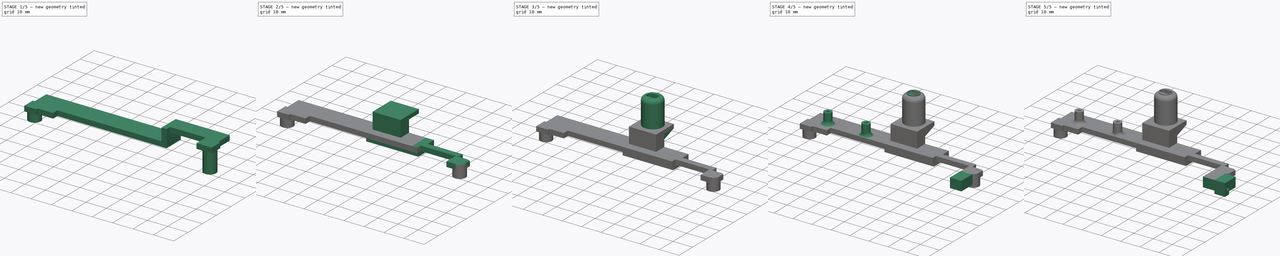
[diagram: build sequence overview — one tinted view per stage of 5, left to right]
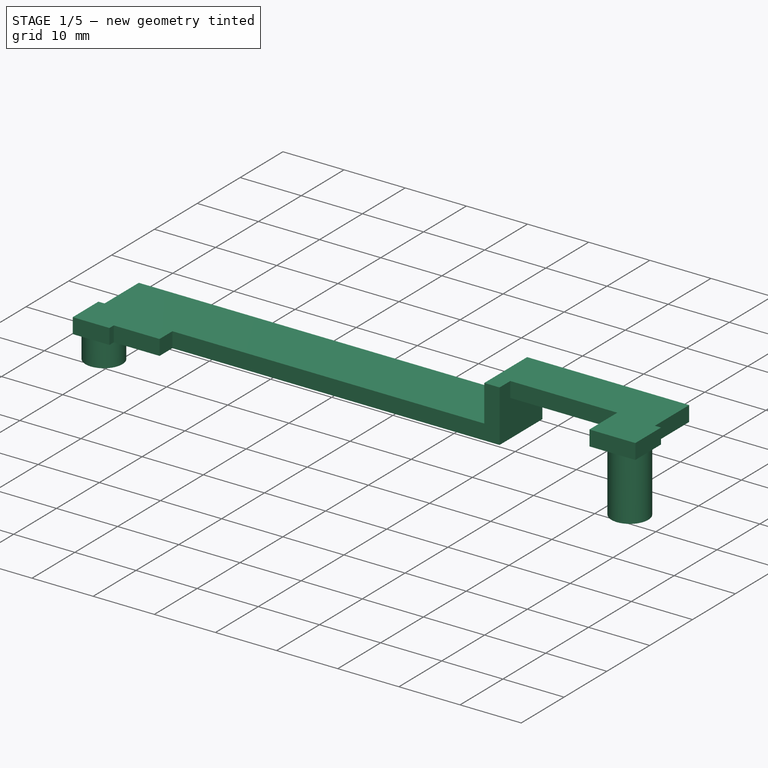
[diagram: stage 1 of 5 — iso view after this stage's code; geometry added in this stage tinted green]
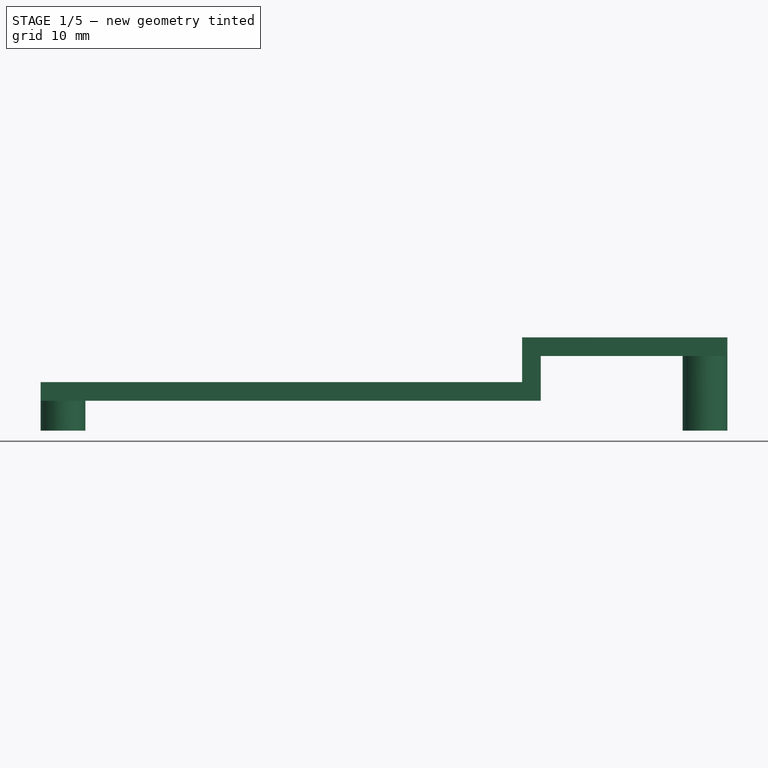
[diagram: stage 1 of 5 — front view after this stage's code; geometry added in this stage tinted green]
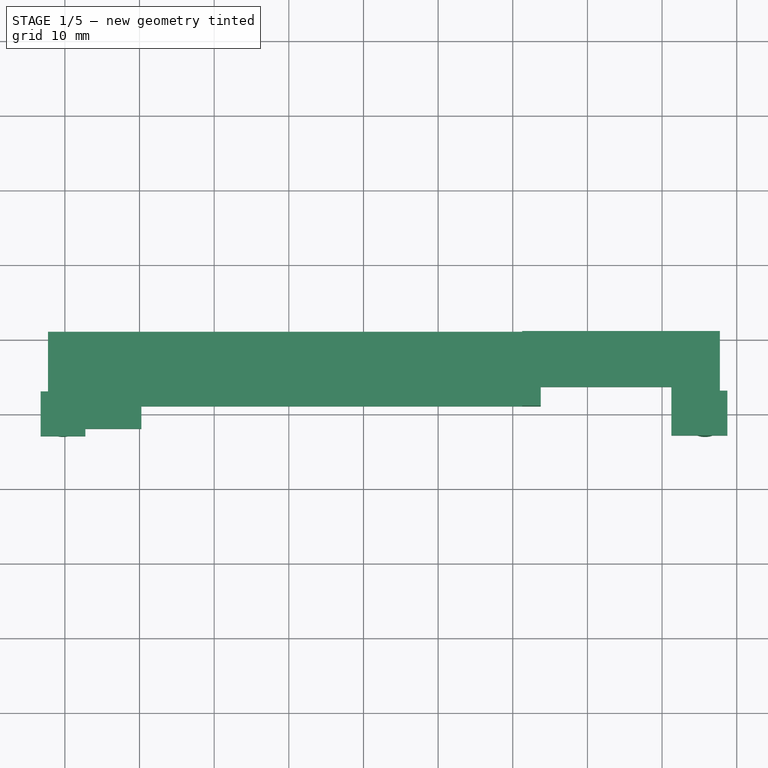
[diagram: stage 1 of 5 — top view after this stage's code; geometry added in this stage tinted green]
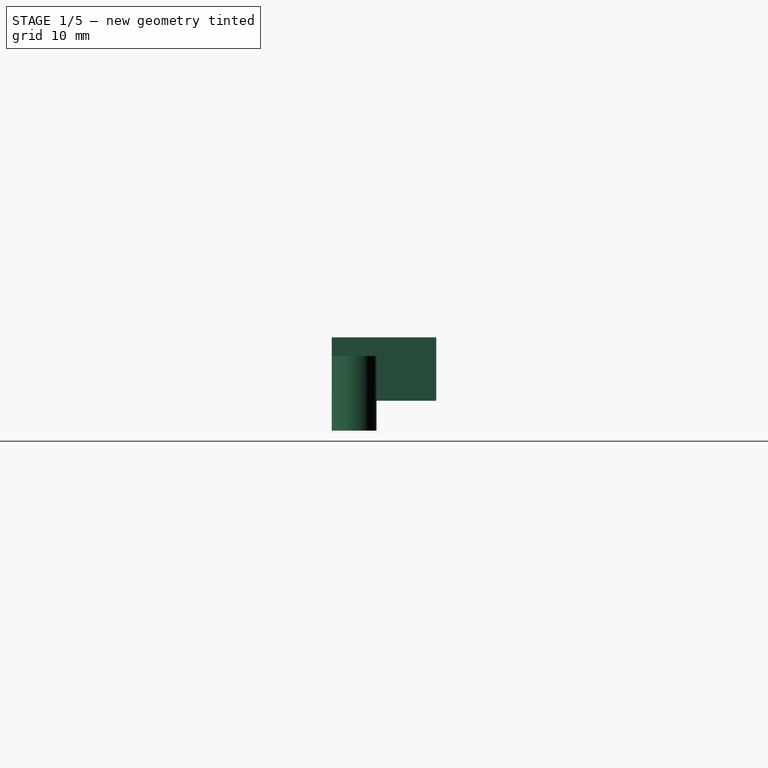
[diagram: stage 1 of 5 — right view after this stage's code; geometry added in this stage tinted green]
FCSTD DOCUMENT  (FreeCAD 0.18.4R)
Label: stand
License: All rights reserved
LicenseURL: http://en.wikipedia.org/wiki/All_rights_reserved
objects: Sketcher::SketchObject×19, PartDesign::Pad×16, PartDesign::Pocket×11, PartDesign::Fillet×2, PartDesign::Body×1
note: 76 computed .brp shape members not serialized (recipe doc carries the construction recipe); baked Part::Feature solids carry a one-line shape summary decoded from their .brp

FEATURE [Sketcher::SketchObject] Sketch
  MapMode = 5
  Support = -> [XY_Plane]
  sketch-geometry (2):
    g0: Circle CenterX=-40.25 CenterY=0 CenterZ=0 NormalX=0 NormalY=0 NormalZ=1 AngleXU=0 Radius=3
    g1: Circle CenterX=45.75 CenterY=0 CenterZ=0 NormalX=0 NormalY=0 NormalZ=1 AngleXU=0 Radius=3
  constraints (6):
    c: PointOnObject(g1,g-1)
    c: Diameter(g0) = 6
    c: Diameter(g1) = 6
    c: DistanceX(g0,g1) = 86
    c: DistanceX(g0,g-1) = 40.25
    c: Horizontal(g0,g-1)
FEATURE [Sketcher::SketchObject] Sketch001
  MapMode = 5
  Support = -> [XY_Plane]
  sketch-geometry (4):
    g0: LineSegment StartX=-50 StartY=20 StartZ=0 EndX=50 EndY=20 EndZ=0
    g1: LineSegment StartX=50 StartY=20 StartZ=0 EndX=50 EndY=-11 EndZ=0
    g2: LineSegment StartX=50 StartY=-11 StartZ=0 EndX=-50 EndY=-11 EndZ=0
    g3: LineSegment StartX=-50 StartY=-11 StartZ=0 EndX=-50 EndY=20 EndZ=0
  constraints (12):
    c: Coincident(g0,g1)
    c: Coincident(g1,g2)
    c: Coincident(g2,g3)
    c: Coincident(g3,g0)
    c: Horizontal(g0)
    c: Horizontal(g2)
    c: Vertical(g1)
    c: Vertical(g3)
    c: DistanceX(g0,g0) = 100
    c: DistanceY(g3,g3) = 31
    c: DistanceY(g-1,g0) = 20
    c: DistanceX(g-1,g1) = 50
FEATURE [PartDesign::Pad] Pad
  Length = 1
  Length2 = 100
  Profile = -> Sketch001
  Reversed = true
  Type = 0
FEATURE [PartDesign::Pad] Pad001
  BaseFeature = -> Pad
  Length = 10
  Length2 = 100
  Profile = -> Sketch
  Type = 0
FEATURE [Sketcher::SketchObject] Sketch002
  ExternalGeometry = -> [Pad001]
  MapMode = 5
  Placement = pos=(0,0,10) rot=(0,0,1;0rad)
  Support = -> [Pad001]
  sketch-geometry (16):
    g0: LineSegment StartX=-42.25 StartY=11 StartZ=0 EndX=47.75 EndY=11 EndZ=0
    g1: LineSegment StartX=47.75 StartY=11 StartZ=0 EndX=47.75 EndY=3 EndZ=0
    g2: LineSegment StartX=-42.25 StartY=3 StartZ=0 EndX=-42.25 EndY=11 EndZ=0
    g3: LineSegment StartX=-29.75 StartY=1 StartZ=0 EndX=23.75 EndY=1 EndZ=0
    g4: LineSegment StartX=-29.75 StartY=-2 StartZ=0 EndX=-29.75 EndY=1 EndZ=0
    g5: LineSegment StartX=-29.75 StartY=-2 StartZ=0 EndX=-37.25 EndY=-2 EndZ=0
    g6: LineSegment StartX=-43.25 StartY=3 StartZ=0 EndX=-42.25 EndY=3 EndZ=0
    g7: LineSegment StartX=-37.25 StartY=-2 StartZ=0 EndX=-37.25 EndY=-3 EndZ=0
    g8: LineSegment StartX=-37.25 StartY=-3 StartZ=0 EndX=-43.25 EndY=-3 EndZ=0
    g9: LineSegment StartX=-43.25 StartY=-3 StartZ=0 EndX=-43.25 EndY=3 EndZ=0
    g10: LineSegment StartX=47.75 StartY=3 StartZ=0 EndX=48.75 EndY=3 EndZ=0
    g11: LineSegment StartX=48.75 StartY=3 StartZ=0 EndX=48.75 EndY=-3 EndZ=0
    g12: LineSegment StartX=48.75 StartY=-3 StartZ=0 EndX=41.25 EndY=-3 EndZ=0
    g13: LineSegment StartX=23.75 StartY=1 StartZ=0 EndX=23.75 EndY=3.5 EndZ=0
    g14: LineSegment StartX=23.75 StartY=3.5 StartZ=0 EndX=41.25 EndY=3.5 EndZ=0
    g15: LineSegment StartX=41.25 StartY=3.5 StartZ=0 EndX=41.25 EndY=-3 EndZ=0
  constraints (48):
    c: Coincident(g0,g1)
    c: Coincident(g2,g0)
    c: Horizontal(g0)
    c: Vertical(g1)
    c: Vertical(g2)
    c: Coincident(g4,g3)
    c: Horizontal(g3)
    c: Vertical(g4)
    c: DistanceX(g0,g3) = 12.5
    c: Coincident(g4,g5)
    c: Coincident(g7,g8)
    c: Coincident(g8,g9)
    c: Coincident(g9,g6)
    c: Horizontal(g6)
    c: Horizontal(g8)
    c: Vertical(g7)
    c: Vertical(g9)
    c: DistanceX(g8,g-4) = 3
    c: DistanceY(g8,g-4) = 3
    c: Coincident(g6,g2)
    c: Coincident(g5,g7)
    c: DistanceY(g4,g0) = 13
    c: DistanceX(g0,g0) = 90
    c: Distance(g8) = 6
    c: Distance(g9) = 6
    c: Coincident(g10,g11)
    c: Coincident(g11,g12)
    c: Horizontal(g10)
    c: Horizontal(g12)
    c: Vertical(g11)
    c: DistanceY(g11,g-3) = 3
    c: DistanceX(g-3,g11) = 3
    c: Distance(g11) = 6
    c: Distance(g12) = 7.5
    c: Coincident(g10,g1)
    c: DistanceY(g4,g4) = 3
    c: DistanceX(g6,g6) = 1
    c: DistanceY(g7,g7) = 1
    c: Distance(g3) = 53.5
    c: Coincident(g13,g3)
    c: Vertical(g13)
    c: Coincident(g14,g13)
    c: Horizontal(g14)
    c: DistanceY(g13,g13) = 2.5
    c: DistanceX(g14,g14) = 17.5
    c: Coincident(g15,g14)
    c: Coincident(g15,g12)
    c: DistanceY(g5,g5) = 0
FEATURE [PartDesign::Pad] Pad002
  BaseFeature = -> Pad001
  Length = 2.5
  Length2 = 100
  Profile = -> Sketch002
  Type = 0
FEATURE [Sketcher::SketchObject] Sketch003
  ExternalGeometry = -> [Pad002]
  MapMode = 5
  Placement = pos=(0,0,-1) rot=(1,0,0;3.14159rad)
  Support = -> [Pad002]
  sketch-geometry (4):
    g0: LineSegment StartX=-50 StartY=11 StartZ=0 EndX=50 EndY=11 EndZ=0
    g1: LineSegment StartX=50 StartY=11 StartZ=0 EndX=50 EndY=-20 EndZ=0
    g2: LineSegment StartX=50 StartY=-20 StartZ=0 EndX=-50 EndY=-20 EndZ=0
    g3: LineSegment StartX=-50 StartY=-20 StartZ=0 EndX=-50 EndY=11 EndZ=0
  constraints (10):
    c: Coincident(g0,g1)
    c: Coincident(g1,g2)
    c: Coincident(g2,g3)
    c: Coincident(g3,g0)
    c: Horizontal(g0)
    c: Horizontal(g2)
    c: Vertical(g1)
    c: Vertical(g3)
    c: Coincident(g0,g-4)
    c: Coincident(g1,g-6)
FEATURE [PartDesign::Pocket] Pocket
  BaseFeature = -> Pad002
  Length = 1
  Length2 = 100
  Profile = -> Sketch003
  Type = 0
FEATURE [Sketcher::SketchObject] Sketch004
  ExternalGeometry = -> [Pocket]
  MapMode = 5
  Placement = pos=(0,0,10) rot=(1,0,0;3.14159rad)
  Support = -> [Pocket]
  sketch-geometry (10):
    g0: LineSegment StartX=23.75 StartY=-1 StartZ=0 EndX=-29.75 EndY=-1 EndZ=0
    g1: LineSegment StartX=23.75 StartY=-11 StartZ=0 EndX=23.75 EndY=-1 EndZ=0
    g2: LineSegment StartX=-29.75 StartY=-1 StartZ=0 EndX=-29.75 EndY=2 EndZ=0
    g3: LineSegment StartX=-37.25 StartY=2 StartZ=0 EndX=-37.25 EndY=3 EndZ=0
    g4: LineSegment StartX=-37.25 StartY=2 StartZ=0 EndX=-29.75 EndY=2 EndZ=0
    g5: LineSegment StartX=-37.25 StartY=3 StartZ=0 EndX=-43.25 EndY=3 EndZ=0
    g6: LineSegment StartX=-43.25 StartY=-3 StartZ=0 EndX=-42.25 EndY=-3 EndZ=0
    g7: LineSegment StartX=-43.25 StartY=3 StartZ=0 EndX=-43.25 EndY=-3 EndZ=0
    g8: LineSegment StartX=-42.25 StartY=-3 StartZ=0 EndX=-42.25 EndY=-11 EndZ=0
    g9: LineSegment StartX=-42.25 StartY=-11 StartZ=0 EndX=23.75 EndY=-11 EndZ=0
  constraints (23):
    c: Coincident(g1,g0)
    c: Horizontal(g0)
    c: Vertical(g1)
    c: Coincident(g0,g-4)
    c: DistanceX(g0,g-3) = 0
    c: Coincident(g2,g0)
    c: Coincident(g2,g-13)
    c: Coincident(g3,g-12)
    c: Coincident(g4,g3)
    c: Coincident(g4,g2)
    c: Horizontal(g4)
    c: Coincident(g5,g3)
    c: Coincident(g5,g-7)
    c: Coincident(g6,g-9)
    c: Coincident(g6,g-9)
    c: Coincident(g7,g5)
    c: Coincident(g7,g6)
    c: Coincident(g8,g6)
    c: Coincident(g8,g-5)
    c: DistanceX(g-12,g3) = 0
    c: Coincident(g9,g8)
    c: Coincident(g9,g1)
    c: Horizontal(g9)
FEATURE [PartDesign::Pad] Pad003
  BaseFeature = -> Pocket
  Length = 6
  Length2 = 100
  Profile = -> Sketch004
  Type = 0
FEATURE [Sketcher::SketchObject] Sketch005
  ExternalGeometry = -> [Pad003]
  MapMode = 5
  Placement = pos=(0,0,12.5) rot=(0,0,1;0rad)
  Support = -> [Pad003]
  sketch-geometry (10):
    g0: LineSegment StartX=-42.25 StartY=11 StartZ=0 EndX=-42.25 EndY=3 EndZ=0
    g1: LineSegment StartX=-43.25 StartY=3 StartZ=0 EndX=-42.25 EndY=3 EndZ=0
    g2: LineSegment StartX=-43.25 StartY=-3 StartZ=0 EndX=-43.25 EndY=3 EndZ=0
    g3: LineSegment StartX=-43.25 StartY=-3 StartZ=0 EndX=-37.25 EndY=-3 EndZ=0
    g4: LineSegment StartX=-37.25 StartY=-3 StartZ=0 EndX=-37.25 EndY=-2 EndZ=0
    g5: LineSegment StartX=-37.25 StartY=-2 StartZ=0 EndX=-29.75 EndY=-2 EndZ=0
    g6: LineSegment StartX=-29.75 StartY=-2 StartZ=0 EndX=-29.75 EndY=1 EndZ=0
    g7: LineSegment StartX=-29.75 StartY=1 StartZ=0 EndX=21.25 EndY=1 EndZ=0
    g8: LineSegment StartX=-42.25 StartY=11 StartZ=0 EndX=21.25 EndY=11 EndZ=0
    g9: LineSegment StartX=21.25 StartY=11 StartZ=0 EndX=21.25 EndY=1 EndZ=0
  constraints (22):
    c: Coincident(g0,g-7)
    c: Coincident(g1,g-4)
    c: Coincident(g1,g0)
    c: Coincident(g2,g-5)
    c: Coincident(g2,g1)
    c: Coincident(g3,g-6)
    c: Coincident(g4,g3)
    c: Coincident(g4,g-8)
    c: Coincident(g5,g4)
    c: Coincident(g6,g-10)
    c: Coincident(g7,g6)
    c: Coincident(g0,g-3)
    c: Horizontal(g8)
    c: Coincident(g0,g8)
    c: Coincident(g5,g6)
    c: Coincident(g5,g-9)
    c: Coincident(g2,g3)
    c: Coincident(g9,g7)
    c: Vertical(g9)
    c: Coincident(g8,g9)
    c: Horizontal(g7)
    c: DistanceX(g7,g-11) = 2.5
FEATURE [PartDesign::Pocket] Pocket001
  BaseFeature = -> Pad003
  Length = 6
  Length2 = 100
  Profile = -> Sketch005
  Type = 0
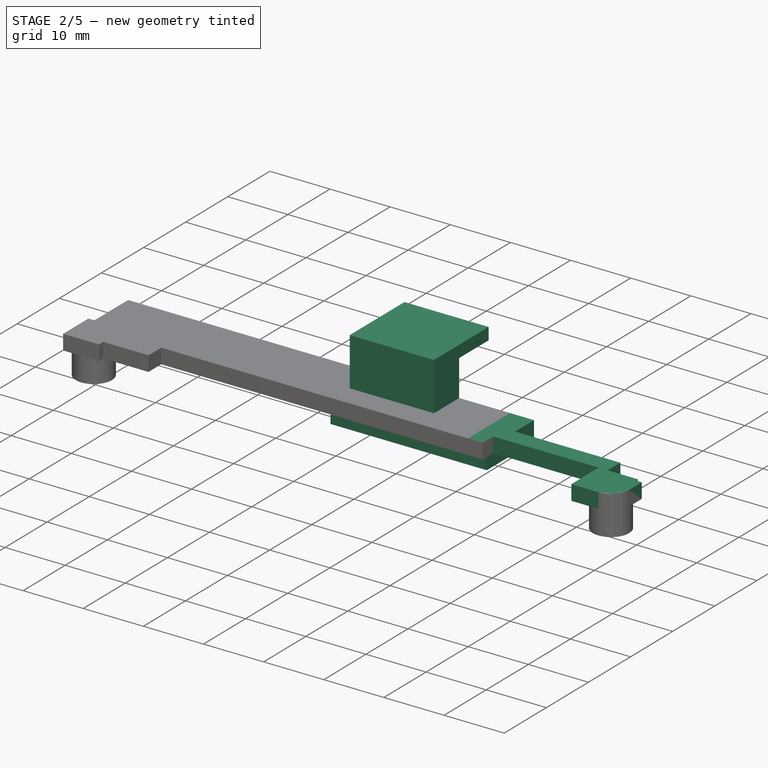
[diagram: stage 2 of 5 — iso view after this stage's code; geometry added in this stage tinted green]
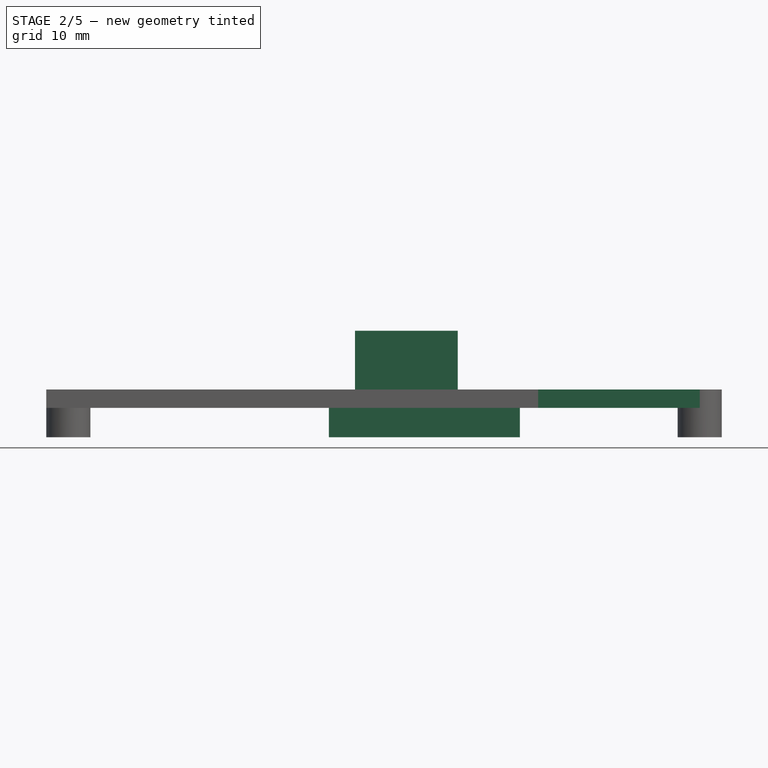
[diagram: stage 2 of 5 — front view after this stage's code; geometry added in this stage tinted green]
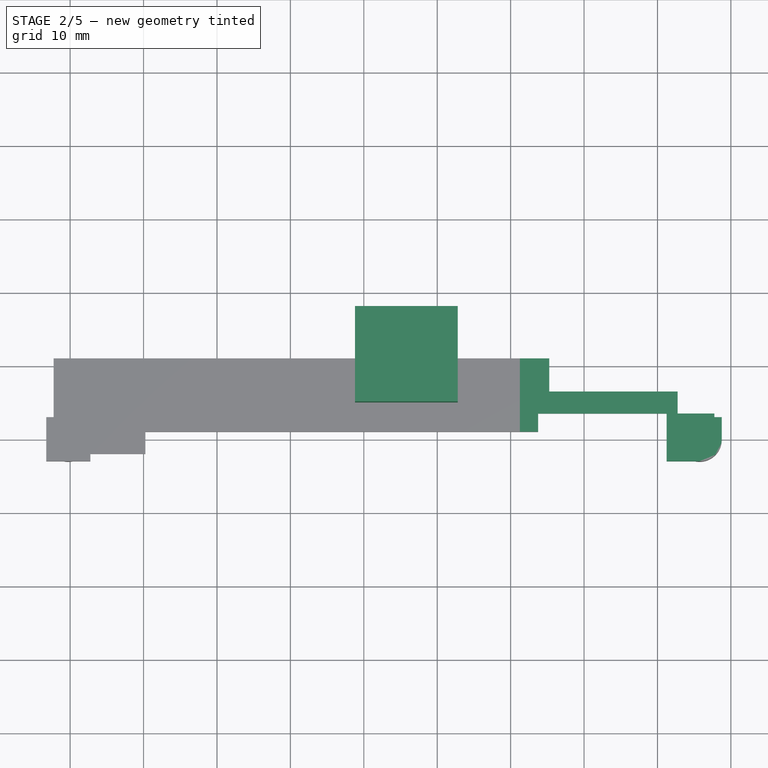
[diagram: stage 2 of 5 — top view after this stage's code; geometry added in this stage tinted green]
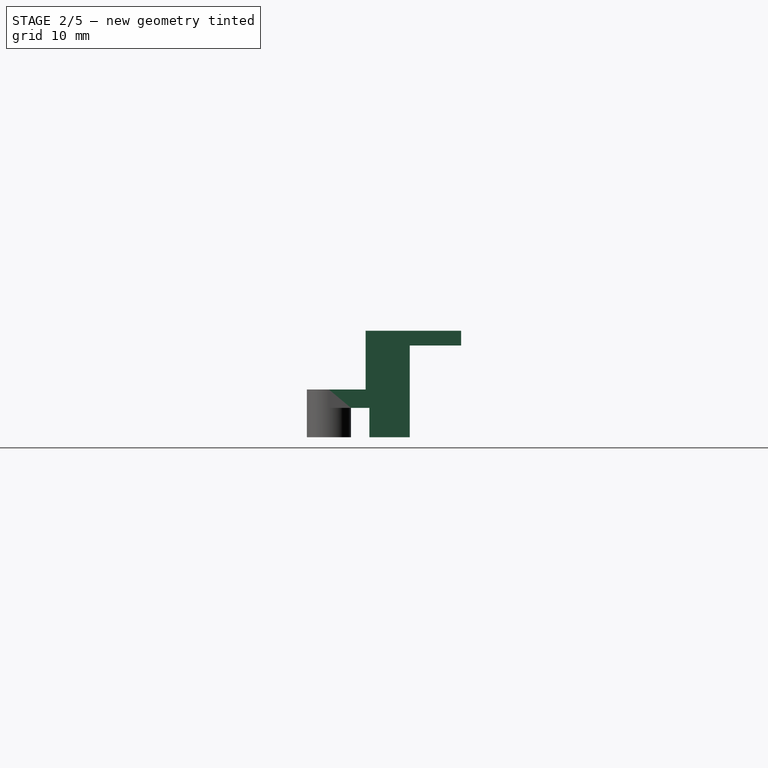
[diagram: stage 2 of 5 — right view after this stage's code; geometry added in this stage tinted green]
FEATURE [Sketcher::SketchObject] Sketch006
  ExternalGeometry = -> [Pocket001]
  MapMode = 5
  Placement = pos=(0,0,12.5) rot=(0,0,1;0rad)
  Support = -> [Pocket001]
  sketch-geometry (12):
    g0: LineSegment StartX=25.25 StartY=13.5 StartZ=0 EndX=40.25 EndY=13.5 EndZ=0
    g1: LineSegment StartX=42.75 StartY=6.5 StartZ=0 EndX=25.25 EndY=6.5 EndZ=0
    g2: LineSegment StartX=25.25 StartY=6.5 StartZ=0 EndX=25.25 EndY=13.5 EndZ=0
    g3: LineSegment StartX=42.75 StartY=6.5 StartZ=0 EndX=42.75 EndY=3.5 EndZ=0
    g4: LineSegment StartX=42.75 StartY=3.5 StartZ=0 EndX=50.75 EndY=3.5 EndZ=0
    g5: LineSegment StartX=40.25 StartY=15.5 StartZ=0 EndX=55.25 EndY=15.5 EndZ=0
    g6: LineSegment StartX=55.25 StartY=15.5 StartZ=0 EndX=55.25 EndY=8.5 EndZ=0
    g7: LineSegment StartX=55.25 StartY=8.5 StartZ=0 EndX=53.75 EndY=8.5 EndZ=0
    g8: LineSegment StartX=40.25 StartY=13.5 StartZ=0 EndX=40.25 EndY=15.5 EndZ=0
    g9: LineSegment StartX=53.75 StartY=8.5 StartZ=0 EndX=53.75 EndY=0 EndZ=0
    g10: LineSegment StartX=53.75 StartY=0 StartZ=0 EndX=50.75 EndY=0 EndZ=0
    g11: LineSegment StartX=50.75 StartY=3.5 StartZ=0 EndX=50.75 EndY=0 EndZ=0
  constraints (36):
    c: Coincident(g1,g2)
    c: Coincident(g2,g0)
    c: Horizontal(g0)
    c: Horizontal(g1)
    c: Vertical(g2)
    c: DistanceY(g-3,g1) = 3
    c: DistanceX(g-3,g1) = 1.5
    c: DistanceX(g-4,g1) = 1.5
    c: Vertical(g3)
    c: Horizontal(g4)
    c: Coincident(g3,g4)
    c: DistanceY(g3,g-4) = 0
    c: Coincident(g5,g6)
    c: Coincident(g6,g7)
    c: Coincident(g8,g5)
    c: Horizontal(g5)
    c: Horizontal(g7)
    c: Vertical(g6)
    c: Vertical(g8)
    c: Coincident(g9,g10)
    c: Horizontal(g10)
    c: Vertical(g9)
    c: PointOnObject(g9,g-1)
    c: Coincident(g0,g8)
    c: Coincident(g7,g9)
    c: Coincident(g11,g10)
    c: Coincident(g4,g11)
    c: Vertical(g11)
    c: DistanceX(g4,g4) = 8
    c: DistanceX(g10,g10) = 3
    c: DistanceX(g5,g5) = 15
    c: DistanceX(g0,g0) = 15
    c: Coincident(g1,g3)
    c: DistanceY(g2,g2) = 7
    c: DistanceY(g6,g6) = 7
    c: DistanceY(g8,g8) = 2
FEATURE [PartDesign::Pocket] Pocket002
  BaseFeature = -> Pocket001
  Length = 5
  Length2 = 100
  Profile = -> Sketch006
  Type = 0
FEATURE [PartDesign::Pad] Pad004
  BaseFeature = -> Pocket002
  Length = 6
  Length2 = 100
  Profile = -> Pocket002 [Face4]
  Type = 0
FEATURE [PartDesign::Pocket] Pocket003
  BaseFeature = -> Pad004
  Length = 6
  Length2 = 100
  Profile = -> Pad004 [Face20]
  Type = 0
FEATURE [Sketcher::SketchObject] Sketch008
  ExternalGeometry = -> [Pocket003]
  MapMode = 5
  Placement = pos=(0,0,4) rot=(1,0,0;3.14159rad)
  Support = -> [Pocket003]
  sketch-geometry (4):
    g0: LineSegment StartX=-4.75 StartY=-5.5 StartZ=0 EndX=21.25 EndY=-5.5 EndZ=0
    g1: LineSegment StartX=21.25 StartY=-5.5 StartZ=0 EndX=21.25 EndY=-11 EndZ=0
    g2: LineSegment StartX=21.25 StartY=-11 StartZ=0 EndX=-4.75 EndY=-11 EndZ=0
    g3: LineSegment StartX=-4.75 StartY=-11 StartZ=0 EndX=-4.75 EndY=-5.5 EndZ=0
  constraints (12):
    c: Coincident(g0,g1)
    c: Coincident(g1,g2)
    c: Coincident(g2,g3)
    c: Coincident(g3,g0)
    c: Horizontal(g0)
    c: Horizontal(g2)
    c: Vertical(g1)
    c: Vertical(g3)
    c: DistanceX(g0,g0) = 26
    c: DistanceY(g1,g1) = 5.5
    c: DistanceX(g1,g-3) = 0
    c: DistanceY(g-3,g1) = 0
FEATURE [PartDesign::Pad] Pad005
  BaseFeature = -> Pocket003
  Length = 4
  Length2 = 100
  Profile = -> Sketch008
  Type = 0
FEATURE [Sketcher::SketchObject] Sketch009
  ExternalGeometry = -> [Pad005]
  MapMode = 5
  Placement = pos=(0,0,6.5) rot=(0,0,1;0rad)
  Support = -> [Pad005]
  sketch-geometry (4):
    g0: LineSegment StartX=-1.2 StartY=11 StartZ=0 EndX=12.8 EndY=11 EndZ=0
    g1: LineSegment StartX=12.8 StartY=11 StartZ=0 EndX=12.8 EndY=5 EndZ=0
    g2: LineSegment StartX=12.8 StartY=5 StartZ=0 EndX=-1.2 EndY=5 EndZ=0
    g3: LineSegment StartX=-1.2 StartY=5 StartZ=0 EndX=-1.2 EndY=11 EndZ=0
  constraints (12):
    c: Coincident(g0,g1)
    c: Coincident(g1,g2)
    c: Coincident(g2,g3)
    c: Coincident(g3,g0)
    c: Horizontal(g0)
    c: Horizontal(g2)
    c: Vertical(g1)
    c: Vertical(g3)
    c: DistanceX(g0,g0) = 14
    c: DistanceX(g2,g-1) = 1.2
    c: Horizontal(g0,g-3)
    c: DistanceY(g1,g1) = 6
FEATURE [PartDesign::Pad] Pad006
  BaseFeature = -> Pad005
  Length = 6
  Length2 = 100
  Profile = -> Sketch009
  Type = 0
FEATURE [Sketcher::SketchObject] Sketch010
  ExternalGeometry = -> [Pad006]
  MapMode = 5
  Placement = pos=(0,0,12.5) rot=(0,0,1;0rad)
  Support = -> [Pad006]
  sketch-geometry (4):
    g0: LineSegment StartX=-1.2 StartY=5 StartZ=0 EndX=12.8 EndY=5 EndZ=0
    g1: LineSegment StartX=12.8 StartY=5 StartZ=0 EndX=12.8 EndY=18 EndZ=0
    g2: LineSegment StartX=12.8 StartY=18 StartZ=0 EndX=-1.2 EndY=18 EndZ=0
    g3: LineSegment StartX=-1.2 StartY=18 StartZ=0 EndX=-1.2 EndY=5 EndZ=0
  constraints (10):
    c: Coincident(g0,g1)
    c: Coincident(g1,g2)
    c: Coincident(g2,g3)
    c: Coincident(g3,g0)
    c: Horizontal(g2)
    c: Vertical(g1)
    c: Vertical(g3)
    c: Coincident(g0,g-4)
    c: Coincident(g-5,g0)
    c: DistanceY(g-5,g1) = 7
FEATURE [PartDesign::Pad] Pad007
  BaseFeature = -> Pad006
  Length = 2
  Length2 = 100
  Profile = -> Sketch010
  Type = 0
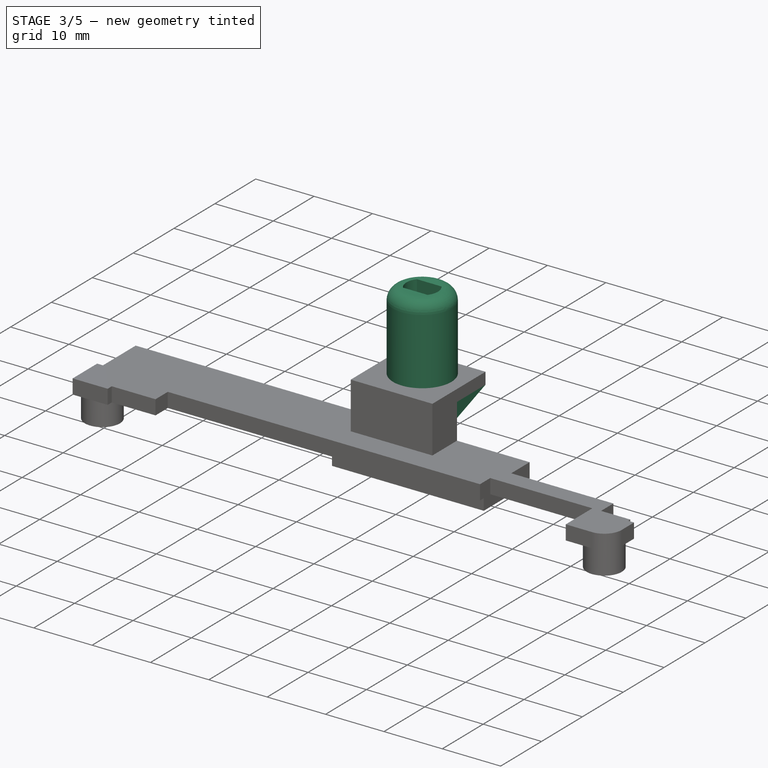
[diagram: stage 3 of 5 — iso view after this stage's code; geometry added in this stage tinted green]
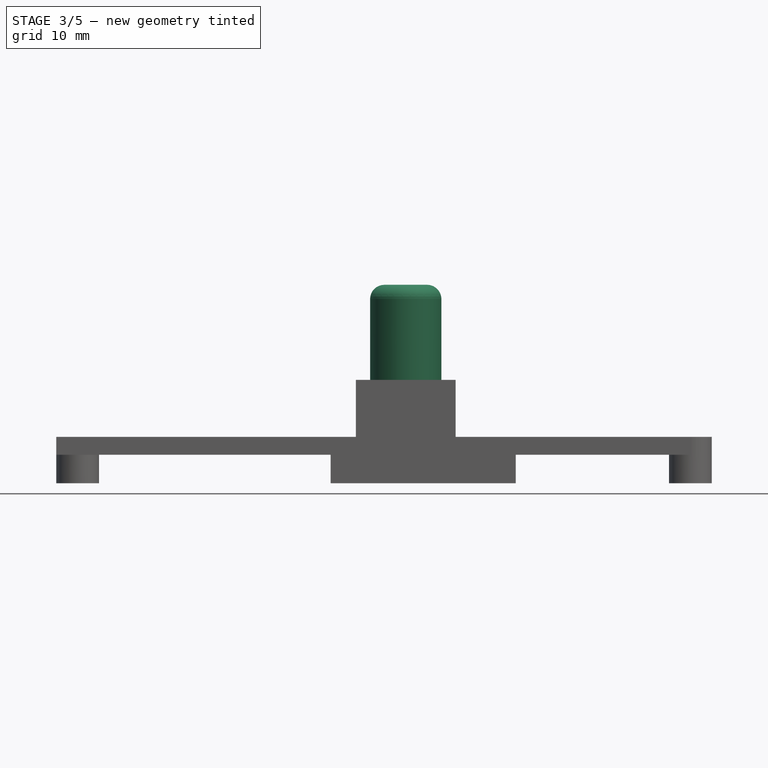
[diagram: stage 3 of 5 — front view after this stage's code; geometry added in this stage tinted green]
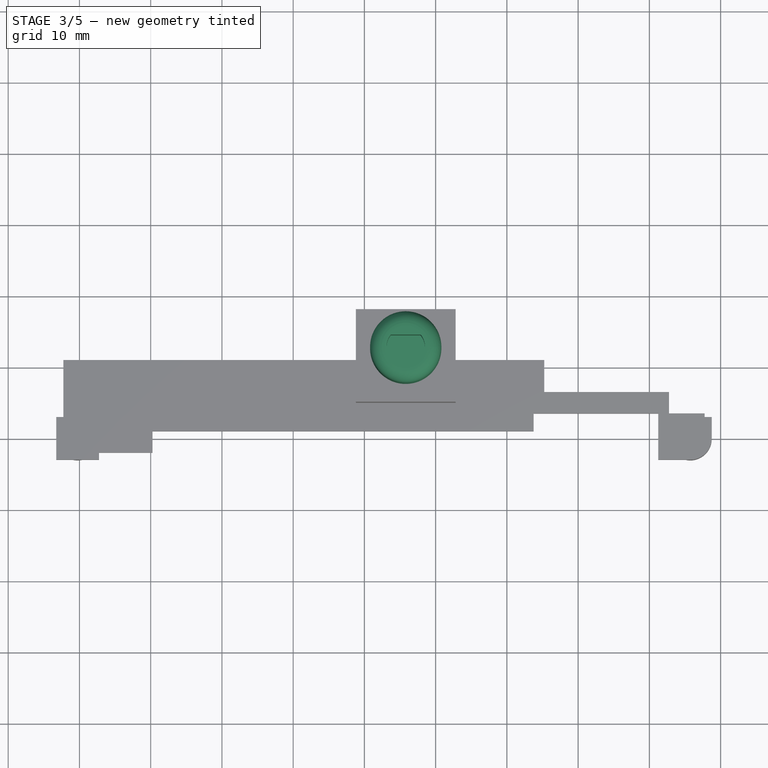
[diagram: stage 3 of 5 — top view after this stage's code; geometry added in this stage tinted green]
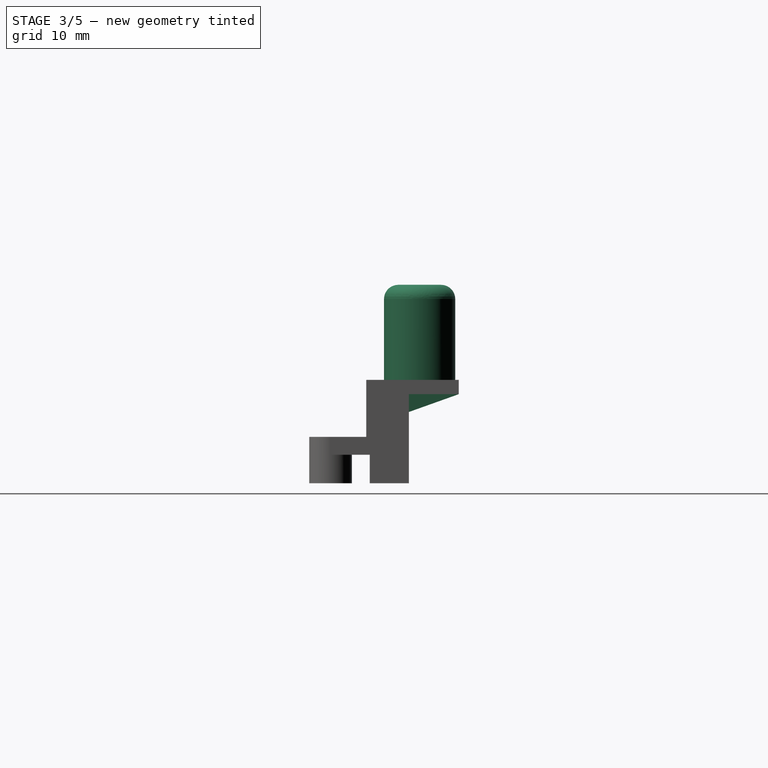
[diagram: stage 3 of 5 — right view after this stage's code; geometry added in this stage tinted green]
FEATURE [Sketcher::SketchObject] Sketch011
  ExternalGeometry = -> [Pad007]
  MapMode = 5
  Placement = pos=(-1.2,0,0) rot=(0.57735,-0.57735,-0.57735;2.0944rad)
  Support = -> [Pad007]
  sketch-geometry (5):
    g0: LineSegment StartX=-18 StartY=12.5 StartZ=0 EndX=-11 EndY=10 EndZ=0
    g1: LineSegment StartX=-18 StartY=13 StartZ=0 EndX=-10.5 EndY=13 EndZ=0
    g2: LineSegment StartX=-10.5 StartY=13 StartZ=0 EndX=-10.5 EndY=10 EndZ=0
    g3: LineSegment StartX=-11 StartY=10 StartZ=0 EndX=-10.5 EndY=10 EndZ=0
    g4: LineSegment StartX=-18 StartY=12.5 StartZ=0 EndX=-18 EndY=13 EndZ=0
  constraints (14):
    c: PointOnObject(g0,g-4)
    c: Coincident(g1,g2)
    c: Horizontal(g1)
    c: Vertical(g2)
    c: DistanceY(g-4,g1) = 0.5
    c: DistanceX(g-4,g1) = 0.5
    c: Coincident(g3,g0)
    c: Horizontal(g3)
    c: Vertical(g4)
    c: Coincident(g1,g4)
    c: Coincident(g2,g3)
    c: Coincident(g0,g4)
    c: Coincident(g0,g-3)
    c: DistanceY(g2,g2) = 3
FEATURE [PartDesign::Pad] Pad008
  BaseFeature = -> Pad007
  Length = 14
  Length2 = 100
  Profile = -> Sketch011
  Reversed = true
  Type = 0
FEATURE [Sketcher::SketchObject] Sketch012
  ExternalGeometry = -> [Pad008]
  MapMode = 5
  Placement = pos=(0,0,14.5) rot=(0,0,1;0rad)
  Support = -> [Pad008]
  sketch-geometry (1):
    g0: Circle CenterX=5.8 CenterY=12.5 CenterZ=0 NormalX=0 NormalY=0 NormalZ=1 AngleXU=0 Radius=5
  constraints (3):
    c: Diameter(g0) = 10
    c: DistanceY(g-3,g0) = 1.5
    c: DistanceX(g-1,g0) = 5.8
FEATURE [PartDesign::Pad] Pad009
  BaseFeature = -> Pad008
  Length = 12.2
  Length2 = 100
  Profile = -> Sketch012
  Type = 0
FEATURE [Sketcher::SketchObject] Sketch013
  ExternalGeometry = -> [Pad009]
  MapMode = 5
  Placement = pos=(0,0,26.7) rot=(0,0,1;0rad)
  Support = -> [Pad009]
  sketch-geometry (4):
    g0: ArcOfCircle CenterX=5.8 CenterY=12.5 CenterZ=0 NormalX=0 NormalY=0 NormalZ=1 AngleXU=0 Radius=2.7 StartAngle=2.46052 EndAngle=3.82267
    g1: LineSegment StartX=3.70238 StartY=14.2 StartZ=0 EndX=7.89762 EndY=14.2 EndZ=0
    g2: LineSegment StartX=7.89762 StartY=10.8 StartZ=0 EndX=3.70238 EndY=10.8 EndZ=0
    g3: ArcOfCircle CenterX=5.8 CenterY=12.5 CenterZ=0 NormalX=0 NormalY=0 NormalZ=1 AngleXU=0 Radius=2.7 StartAngle=5.60211 EndAngle=6.96426
  constraints (12):
    c: Coincident(g0,g-3)
    c: Diameter(g0) = 5.4
    c: Horizontal(g1)
    c: Horizontal(g2)
    c: Coincident(g0,g1)
    c: Coincident(g3,g1)
    c: Equal(g0,g3)
    c: Coincident(g0,g2)
    c: Coincident(g3,g2)
    c: Coincident(g0,g3)
    c: DistanceY(g0,g1) = 1.7
    c: DistanceY(g2,g0) = 1.7
FEATURE [PartDesign::Pocket] Pocket004
  BaseFeature = -> Pad009
  Length = 7
  Length2 = 100
  Profile = -> Sketch013
  Type = 0
FEATURE [PartDesign::Pad] Pad010
  BaseFeature = -> Pocket004
  Length = 1.15
  Length2 = 100
  Profile = -> Pocket004 [Face56]
  Type = 0
FEATURE [PartDesign::Fillet] Fillet
  Base = -> Pad010 [Edge142]
  BaseFeature = -> Pad010
  Radius = 2
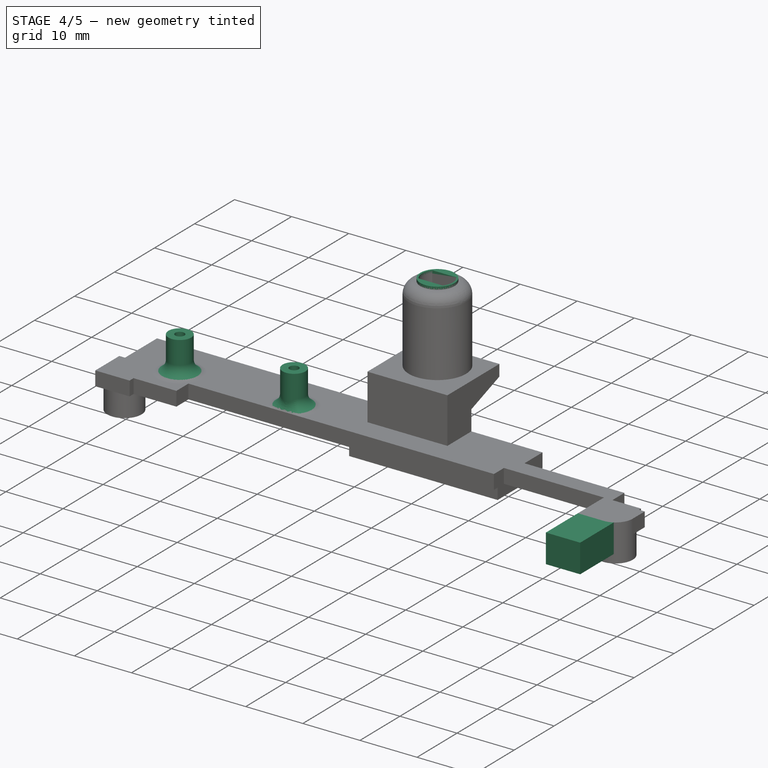
[diagram: stage 4 of 5 — iso view after this stage's code; geometry added in this stage tinted green]
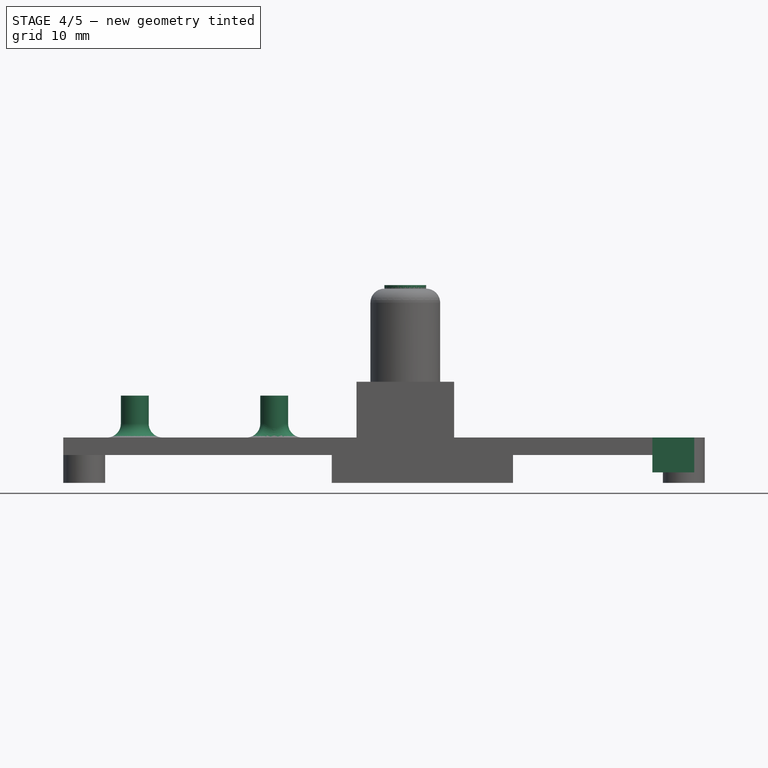
[diagram: stage 4 of 5 — front view after this stage's code; geometry added in this stage tinted green]
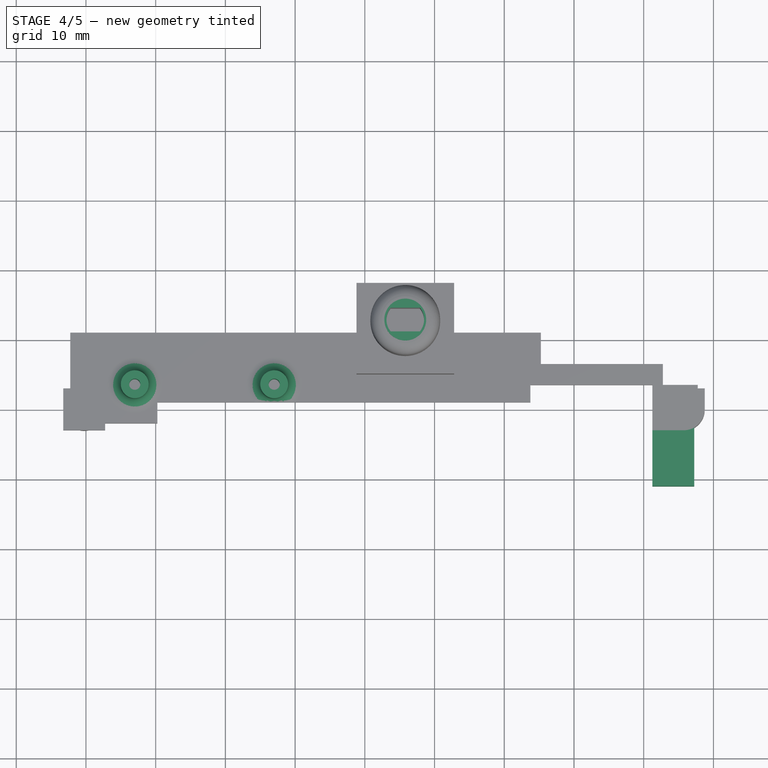
[diagram: stage 4 of 5 — top view after this stage's code; geometry added in this stage tinted green]
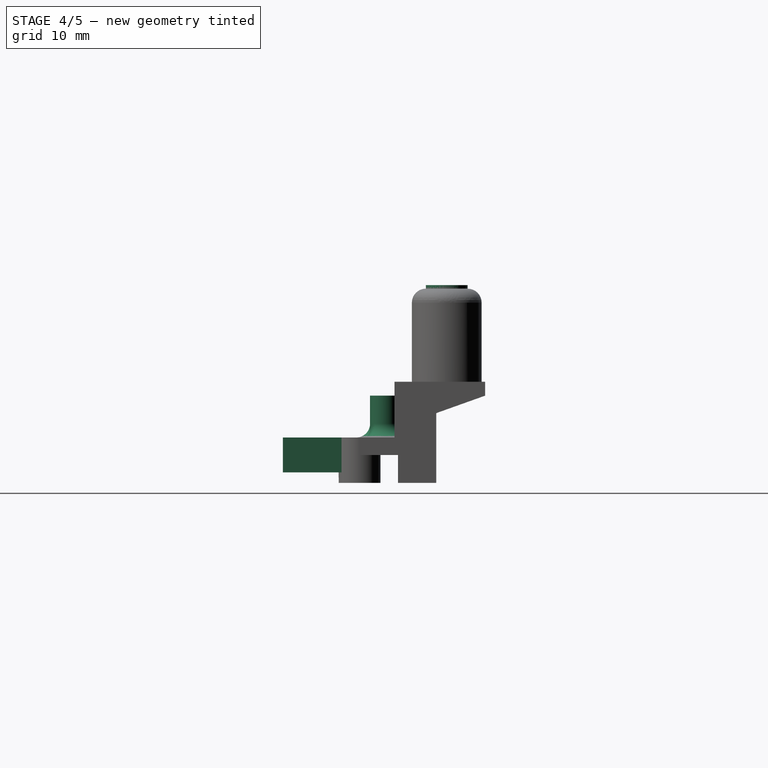
[diagram: stage 4 of 5 — right view after this stage's code; geometry added in this stage tinted green]
FEATURE [PartDesign::Pad] Pad011
  BaseFeature = -> Fillet
  Length = 0.5
  Length2 = 100
  Profile = -> Fillet [Face4]
  Type = 0
FEATURE [Sketcher::SketchObject] Sketch014
  ExternalGeometry = -> [Pad011]
  MapMode = 5
  Placement = pos=(0,0,0) rot=(1,0,0;3.14159rad)
  Support = -> [Pad011]
  sketch-geometry (2):
    g0: Circle CenterX=-40.25 CenterY=0 CenterZ=0 NormalX=0 NormalY=0 NormalZ=1 AngleXU=0 Radius=0.8
    g1: Circle CenterX=45.75 CenterY=0 CenterZ=0 NormalX=0 NormalY=0 NormalZ=1 AngleXU=0 Radius=0.8
  constraints (4):
    c: Coincident(g0,g-3)
    c: Coincident(g1,g-4)
    c: Diameter(g0) = 1.6
    c: Diameter(g1) = 1.6
FEATURE [PartDesign::Pocket] Pocket005
  BaseFeature = -> Pad011
  Length = 6
  Length2 = 100
  Profile = -> Sketch014
  Type = 0
FEATURE [Sketcher::SketchObject] Sketch015
  MapMode = 5
  Placement = pos=(0,0,6.5) rot=(0,0,1;0rad)
  Support = -> [Pocket005]
  sketch-geometry (6):
    g0: LineSegment [constr] StartX=-33 StartY=18 StartZ=0 EndX=-13 EndY=18 EndZ=0
    g1: LineSegment [constr] StartX=-13 StartY=18 StartZ=0 EndX=-13 EndY=3.5 EndZ=0
    g2: LineSegment [constr] StartX=-13 StartY=3.5 StartZ=0 EndX=-33 EndY=3.5 EndZ=0
    g3: LineSegment [constr] StartX=-33 StartY=3.5 StartZ=0 EndX=-33 EndY=18 EndZ=0
    g4: Circle CenterX=-13 CenterY=3.5 CenterZ=0 NormalX=0 NormalY=0 NormalZ=1 AngleXU=0 Radius=2
    g5: Circle CenterX=-33 CenterY=3.5 CenterZ=0 NormalX=0 NormalY=0 NormalZ=1 AngleXU=0 Radius=2
  constraints (16):
    c: Coincident(g0,g1)
    c: Coincident(g1,g2)
    c: Coincident(g2,g3)
    c: Coincident(g3,g0)
    c: Horizontal(g0)
    c: Horizontal(g2)
    c: Vertical(g1)
    c: Vertical(g3)
    c: Distance(g0) = 20
    c: Distance(g1) = 14.5
    c: DistanceX(g1,g-1) = 13
    c: Coincident(g4,g1)
    c: Coincident(g5,g2)
    c: Diameter(g5) = 4
    c: Diameter(g4) = 4
    c: DistanceY(g-1,g4) = 3.5
FEATURE [PartDesign::Pad] Pad012
  BaseFeature = -> Pocket005
  Length = 6
  Length2 = 100
  Profile = -> Sketch015
  Type = 0
FEATURE [Sketcher::SketchObject] Sketch016
  ExternalGeometry = -> [Pad012]
  MapMode = 5
  Placement = pos=(0,0,12.5) rot=(0,0,1;0rad)
  Support = -> [Pad012]
  sketch-geometry (2):
    g0: Circle CenterX=-33 CenterY=3.5 CenterZ=0 NormalX=0 NormalY=0 NormalZ=1 AngleXU=0 Radius=0.8
    g1: Circle CenterX=-13 CenterY=3.5 CenterZ=0 NormalX=0 NormalY=0 NormalZ=1 AngleXU=0 Radius=0.8
  constraints (4):
    c: Coincident(g0,g-4)
    c: Coincident(g1,g-3)
    c: Diameter(g1) = 1.6
    c: Diameter(g0) = 1.6
FEATURE [PartDesign::Pocket] Pocket006
  BaseFeature = -> Pad012
  Length = 6
  Length2 = 100
  Profile = -> Sketch016
  Type = 0
FEATURE [PartDesign::Fillet] Fillet001
  Base = -> Pocket006 [Edge67,Edge68]
  BaseFeature = -> Pocket006
  Radius = 2
FEATURE [Sketcher::SketchObject] Sketch017
  ExternalGeometry = -> [Fillet001]
  MapMode = 5
  Placement = pos=(0,-3,0) rot=(1,0,0;1.5708rad)
  Support = -> [Fillet001]
  sketch-geometry (4):
    g0: LineSegment StartX=41.25 StartY=6.5 StartZ=0 EndX=47.25 EndY=6.5 EndZ=0
    g1: LineSegment StartX=47.25 StartY=6.5 StartZ=0 EndX=47.25 EndY=1.5 EndZ=0
    g2: LineSegment StartX=47.25 StartY=1.5 StartZ=0 EndX=41.25 EndY=1.5 EndZ=0
    g3: LineSegment StartX=41.25 StartY=1.5 StartZ=0 EndX=41.25 EndY=6.5 EndZ=0
  constraints (11):
    c: Coincident(g0,g1)
    c: Coincident(g1,g2)
    c: Coincident(g2,g3)
    c: Coincident(g3,g0)
    c: Horizontal(g0)
    c: Horizontal(g2)
    c: Vertical(g1)
    c: Vertical(g3)
    c: Coincident(g0,g-4)
    c: DistanceY(g2,g-4) = 2.5
    c: DistanceX(g0,g-5) = 1.5
FEATURE [PartDesign::Pad] Pad013
  BaseFeature = -> Fillet001
  Length = 8
  Length2 = 1
  Profile = -> Sketch017
  Type = 4
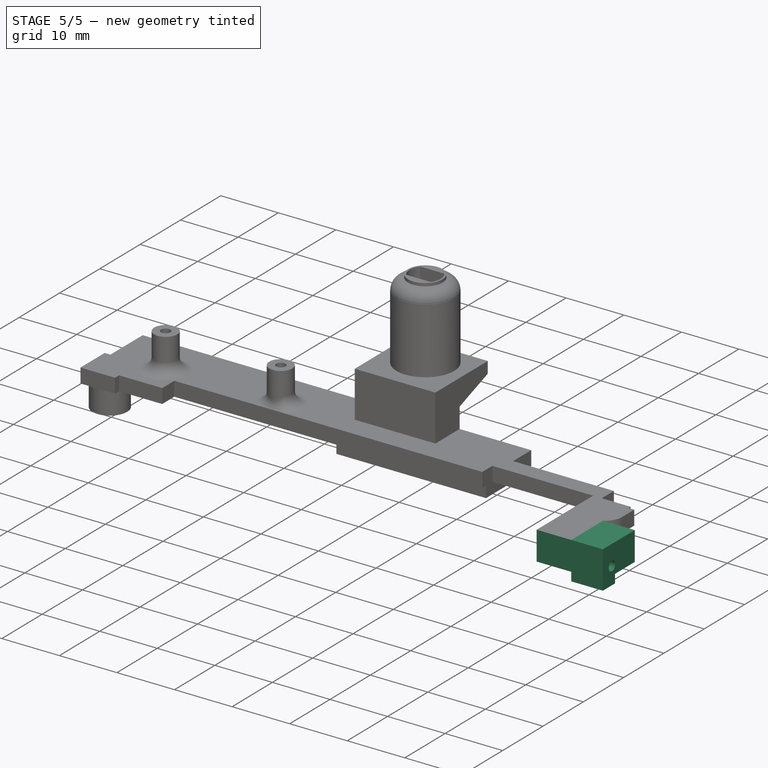
[diagram: stage 5 of 5 — iso view after this stage's code; geometry added in this stage tinted green]
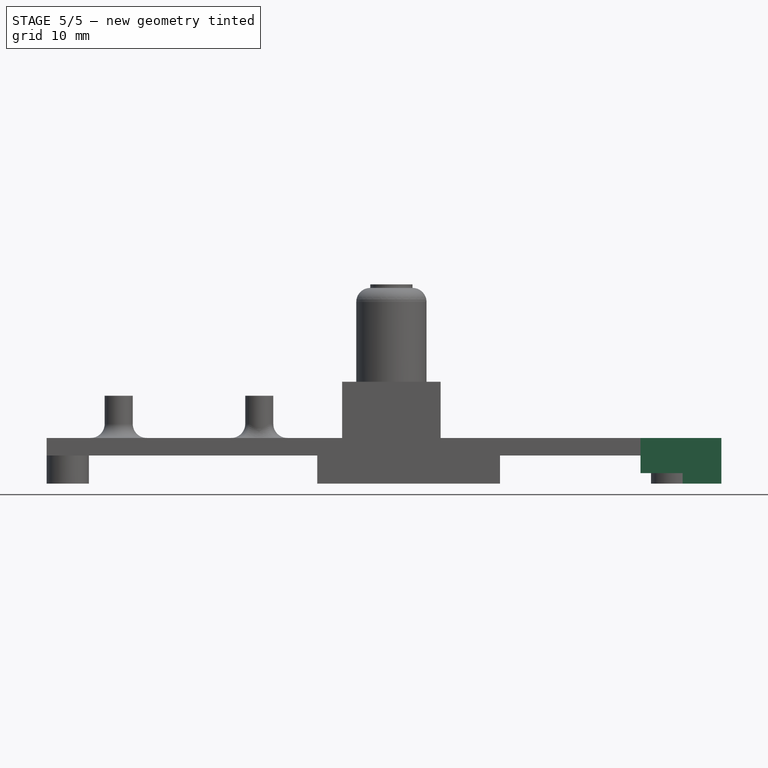
[diagram: stage 5 of 5 — front view after this stage's code; geometry added in this stage tinted green]
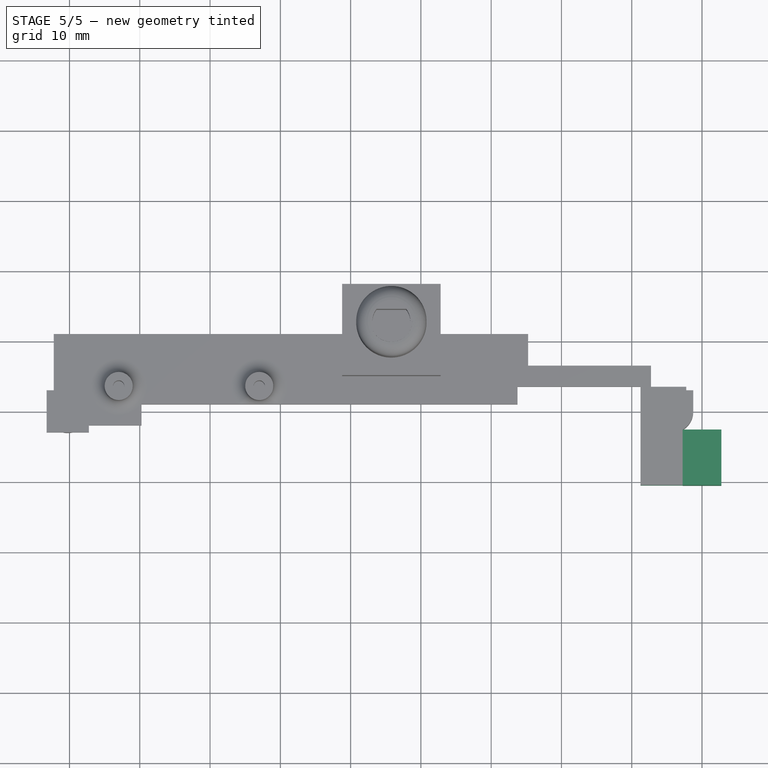
[diagram: stage 5 of 5 — top view after this stage's code; geometry added in this stage tinted green]
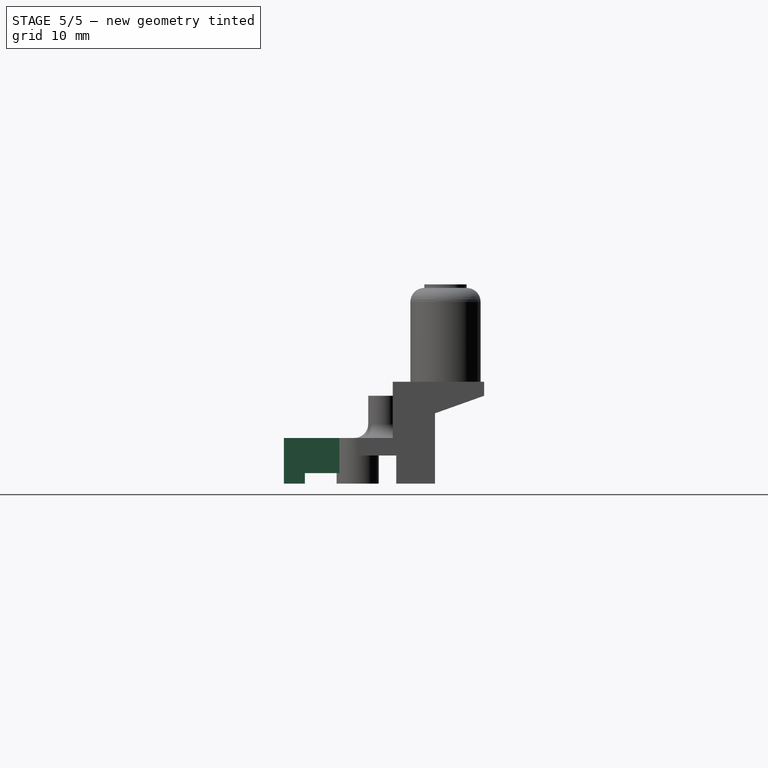
[diagram: stage 5 of 5 — right view after this stage's code; geometry added in this stage tinted green]
FEATURE [PartDesign::Pad] Pad014
  BaseFeature = -> Pad013
  Length = 5.5
  Length2 = 100
  Profile = -> Pad013 [Face53]
  Type = 0
FEATURE [Sketcher::SketchObject] Sketch018
  ExternalGeometry = -> [Pad014]
  MapMode = 5
  Placement = pos=(0,3e-16,1.5) rot=(1,0,0;3.14159rad)
  Support = -> [Pad014]
  sketch-geometry (4):
    g0: LineSegment StartX=52.75 StartY=11 StartZ=0 EndX=47.25 EndY=11 EndZ=0
    g1: LineSegment StartX=47.25 StartY=11 StartZ=0 EndX=47.25 EndY=7.5 EndZ=0
    g2: LineSegment StartX=47.25 StartY=7.5 StartZ=0 EndX=52.75 EndY=7.5 EndZ=0
    g3: LineSegment StartX=52.75 StartY=7.5 StartZ=0 EndX=52.75 EndY=11 EndZ=0
  constraints (11):
    c: Coincident(g0,g1)
    c: Coincident(g1,g2)
    c: Coincident(g2,g3)
    c: Coincident(g3,g0)
    c: Horizontal(g0)
    c: Horizontal(g2)
    c: Vertical(g1)
    c: Vertical(g3)
    c: Coincident(g0,g-4)
    c: Vertical(g1,g-3)
    c: DistanceY(g3,g3) = 3.5
FEATURE [PartDesign::Pad] Pad015
  BaseFeature = -> Pad014
  Length = 1.5
  Length2 = 100
  Profile = -> Sketch018
  Type = 0
FEATURE [Sketcher::SketchObject] Sketch019
  ExternalGeometry = -> [Pad015]
  MapMode = 5
  Placement = pos=(52.75,0,0) rot=(0.57735,0.57735,0.57735;2.0944rad)
  Support = -> [Pad015]
  sketch-geometry (1):
    g0: Circle CenterX=-8.25 CenterY=3 CenterZ=0 NormalX=0 NormalY=0 NormalZ=1 AngleXU=0 Radius=0.8
  constraints (3):
    c: Diameter(g0) = 1.6
    c: DistanceY(g-3,g0) = 3
    c: DistanceX(g-3,g0) = 2.75
FEATURE [PartDesign::Pocket] Pocket007
  BaseFeature = -> Pad015
  Length = 6
  Length2 = 100
  Profile = -> Sketch019
  Type = 0
FEATURE [PartDesign::Pocket] Pocket008
  BaseFeature = -> Pocket007
  Length = 0.5
  Length2 = 100
  Profile = -> Pocket007 [Face80]
  Type = 0
FEATURE [PartDesign::Pocket] Pocket009
  BaseFeature = -> Pocket008
  Length = 0.5
  Length2 = 100
  Profile = -> Pocket008 [Face71]
  Type = 0
FEATURE [PartDesign::Pocket] Pocket010
  BaseFeature = -> Pocket009
  Length = 0.5
  Length2 = 100
  Profile = -> Pocket009 [Face84]
  Type = 0
FEATURE [PartDesign::Body] Body
  Group = -> [Sketch,Sketch001,Pad,Pad001,Sketch002,Pad002,Sketch003,Pocket,Sketch004,Pad003,Sketch005,Pocket001,Sketch006,Pocket002,Pad004,Pocket003,Sketch008,Pad005,Sketch009,Pad006,Sketch010,Pad007,Sketch011,Pad008,Sketch012,Pad009,Sketch013,Pocket004,Pad010,Fillet,Pad011,Sketch014,Pocket005,Sketch015,Pad012,Sketch016,Pocket006,Fillet001,Sketch017,Pad013,Pad014,Sketch018,Pad015,Sketch019,Pocket007,Pocket008,+2 more]
  Origin = -> Origin
  Tip = -> Pocket010
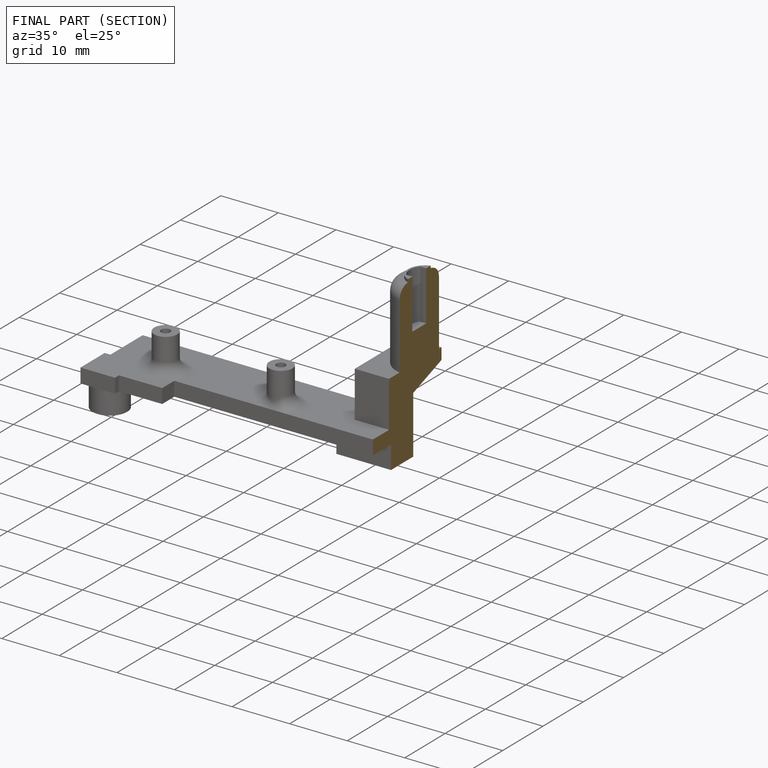
[diagram: finished part — half-section view (interior)]
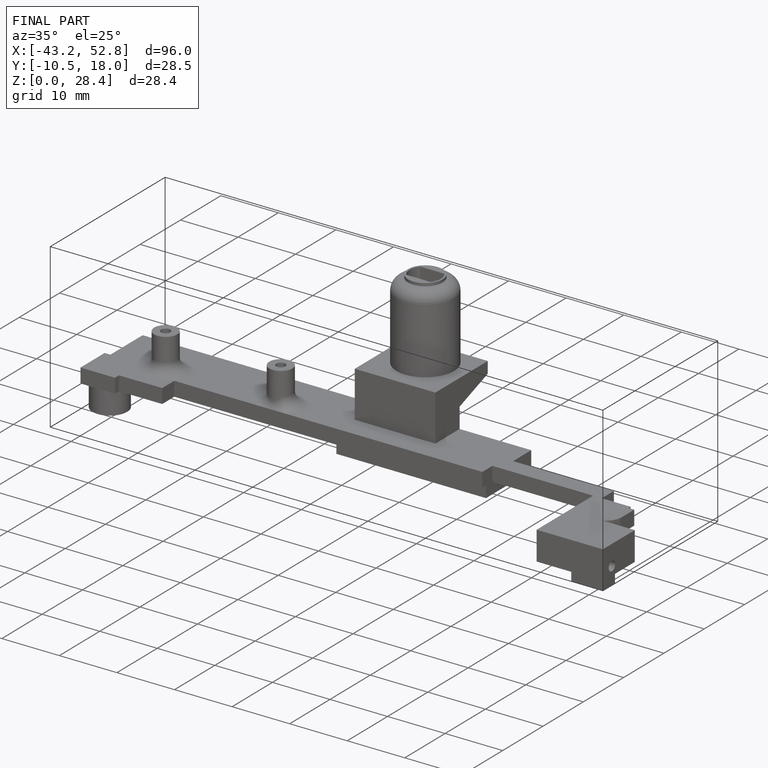
[diagram: finished part — iso view with bounding-box wireframe]
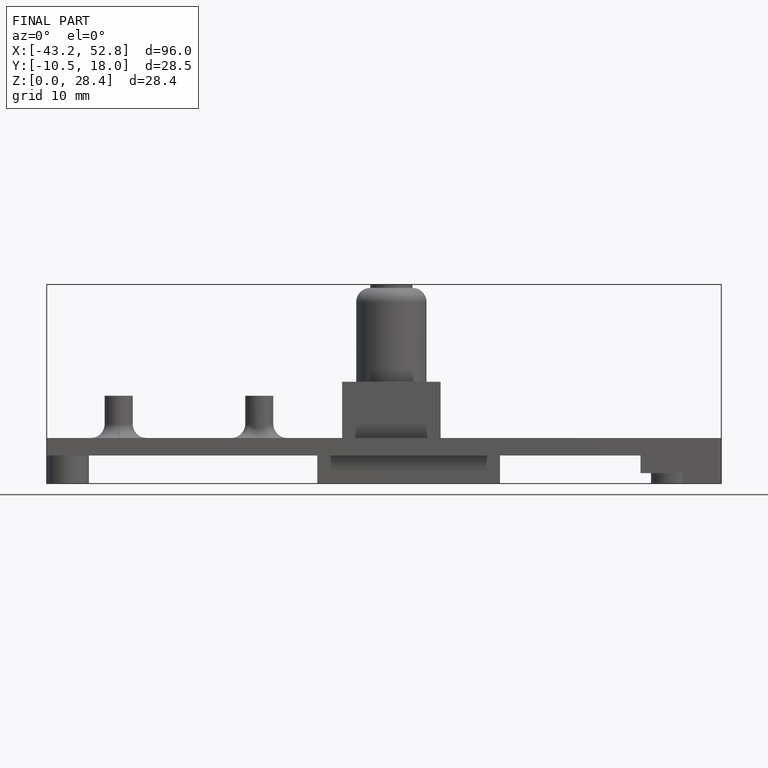
[diagram: finished part — front view with bounding-box wireframe]
